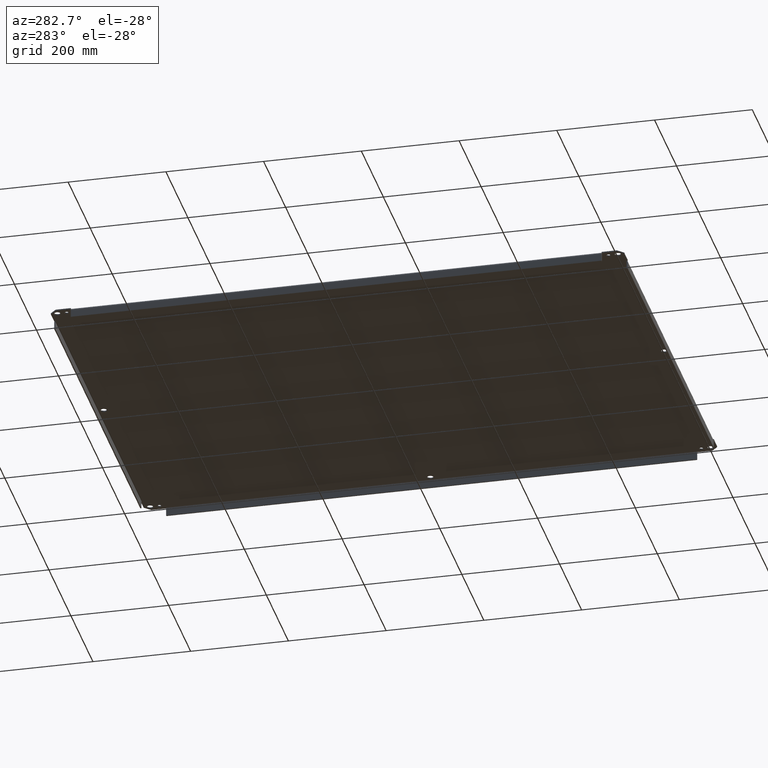
[diagram: clean part render]
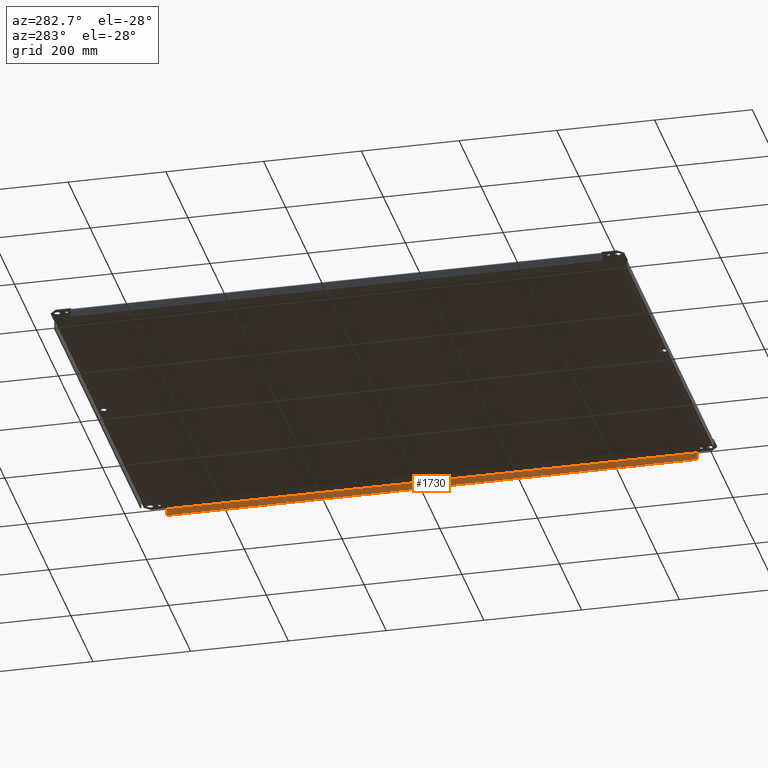
[diagram: same view with one face highlighted and labeled with its STEP entity id]
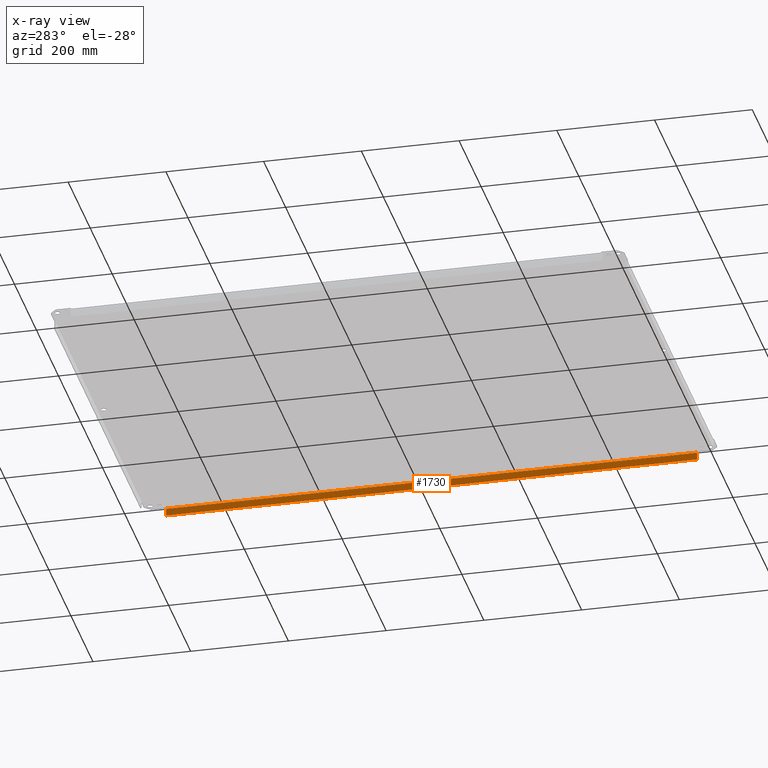
[diagram: x-ray of the same camera — body ghosted, the highlighted face saturated]
A machine part, auxiliary view. The second image highlights one B-rep face of the part: STEP entity #1730.
The next image is the same camera in x-ray: the body ghosted, the highlighted face saturated — about 0% of this face is hidden behind the body in this view.
In plain terms, the highlighted planar face has unit normal (-1, 0, 0).
Its self-contained STEP definition (entity closure, byte-faithful):
#1641=CARTESIAN_POINT('',(34.106250000000003,1.717999999999995,-0.68025));
#1642=VERTEX_POINT('',#1641);
#1643=CARTESIAN_POINT('',(34.106249999999996,1.717999999999995,-0.093750000000019));
#1644=VERTEX_POINT('',#1643);
#1645=CARTESIAN_POINT('',(34.106250000000003,1.718,-0.68025));
#1646=DIRECTION('',(0.0,0.0,1.0));
#1647=VECTOR('',#1646,0.5865);
#1648=LINE('',#1645,#1647);
#1649=EDGE_CURVE('',#1642,#1644,#1648,.T.);
#1689=CARTESIAN_POINT('',(34.106249999999996,44.482000000000006,-0.68025));
#1690=VERTEX_POINT('',#1689);
#1691=CARTESIAN_POINT('',(34.106249999999996,44.482000000000006,-0.68025));
#1692=DIRECTION('',(0.0,-1.0,0.0));
#1693=VECTOR('',#1692,42.76400000000001);
#1694=LINE('',#1691,#1693);
#1695=EDGE_CURVE('',#1690,#1642,#1694,.T.);
#1707=CARTESIAN_POINT('',(34.106249999999996,44.482000000000006,-0.68025));
#1708=DIRECTION('',(-1.0,0.0,0.0));
#1709=DIRECTION('',(0.0,0.0,1.0));
#1710=AXIS2_PLACEMENT_3D('',#1707,#1708,#1709);
#1711=PLANE('',#1710);
#1712=CARTESIAN_POINT('',(34.106249999999989,44.481999999999999,-0.093750000000012));
#1713=VERTEX_POINT('',#1712);
#1714=CARTESIAN_POINT('',(34.106249999999982,44.482000000000006,-0.09375000000001));
#1715=DIRECTION('',(0.0,-1.0,0.0));
#1716=VECTOR('',#1715,42.76400000000001);
#1717=LINE('',#1714,#1716);
#1718=EDGE_CURVE('',#1713,#1644,#1717,.T.);
#1719=ORIENTED_EDGE('',*,*,#1718,.F.);
#1720=CARTESIAN_POINT('',(34.106249999999996,44.482000000000006,-0.09375));
#1721=DIRECTION('',(0.0,0.0,-1.0));
#1722=VECTOR('',#1721,0.5865);
#1723=LINE('',#1720,#1722);
#1724=EDGE_CURVE('',#1713,#1690,#1723,.T.);
#1725=ORIENTED_EDGE('',*,*,#1724,.T.);
#1726=ORIENTED_EDGE('',*,*,#1695,.T.);
#1727=ORIENTED_EDGE('',*,*,#1649,.T.);
#1728=EDGE_LOOP('',(#1719,#1725,#1726,#1727));
#1729=FACE_OUTER_BOUND('',#1728,.T.);
#1730=ADVANCED_FACE('',(#1729),#1711,.T.);